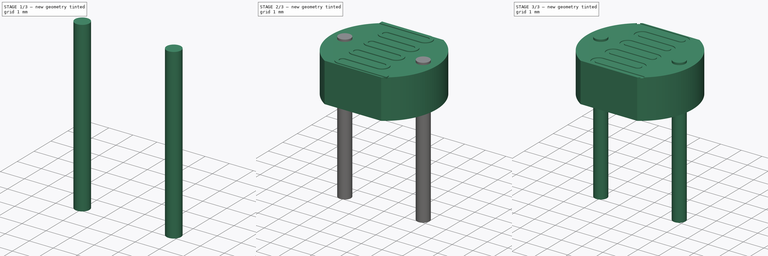
[diagram: build sequence overview — one tinted view per stage of 3, left to right]
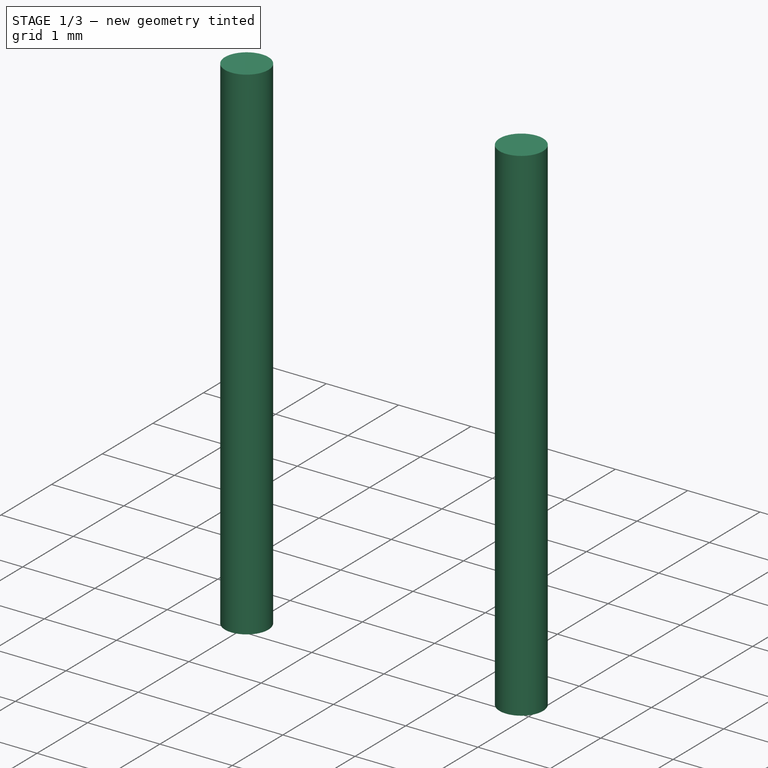
[diagram: stage 1 of 3 — iso view after this stage's code; geometry added in this stage tinted green]
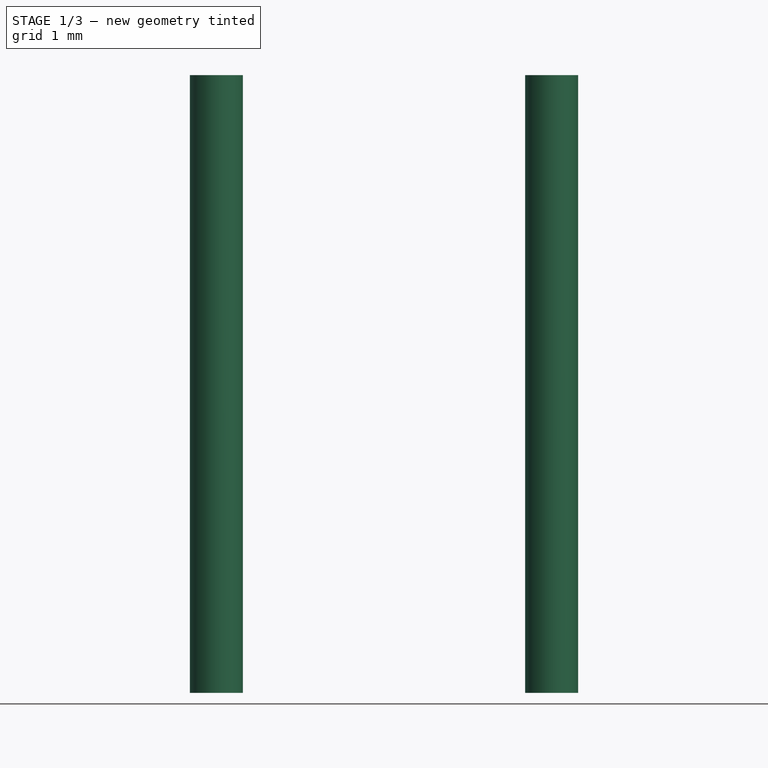
[diagram: stage 1 of 3 — front view after this stage's code; geometry added in this stage tinted green]
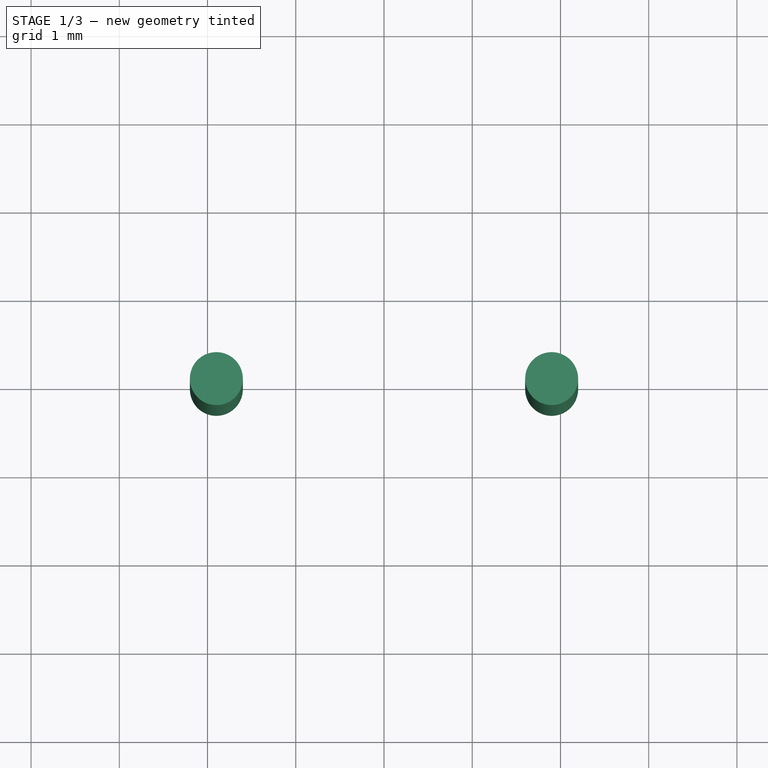
[diagram: stage 1 of 3 — top view after this stage's code; geometry added in this stage tinted green]
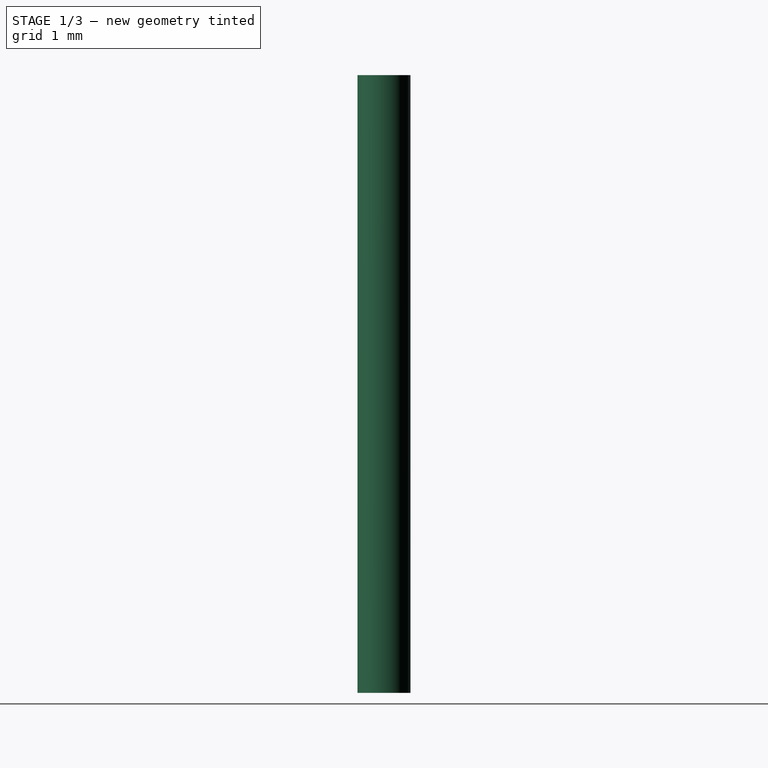
[diagram: stage 1 of 3 — right view after this stage's code; geometry added in this stage tinted green]
FCSTD DOCUMENT  (FreeCAD 0.14R3692 (Git))
Label: Photoresistor
License: CC-BY 3.0
LicenseURL: http://creativecommons.org/licenses/by/3.0/
objects: Sketcher::SketchObject×5, PartDesign::Pad×3, Part::Sweep×1, Part::Cut×1, Part::MultiFuse×1
note: 14 computed .brp shape members not serialized (recipe doc carries the construction recipe); baked Part::Feature solids carry a one-line shape summary decoded from their .brp

FEATURE [Sketcher::SketchObject] Sketch003
  Placement = pos=(0,0,-5) rot=(0,0,1;0rad)
  sketch-geometry (1):
    g0: Circle CenterX=1.9 CenterY=0 CenterZ=0 NormalX=0 NormalY=0 NormalZ=1 Radius=0.3
  constraints (3):
    c: PointOnObject(g0,g-1)
    c: Radius(g0) = 0.3
    c: DistanceX(g-1,g0) = 1.9
FEATURE [PartDesign::Pad] Pad001
  Length = 7
  Length2 = 100
  Placement = pos=(0,0,-5) rot=(0,0,1;0rad)
  Sketch = -> Sketch003
  Type = 0
FEATURE [Sketcher::SketchObject] Sketch004
  Placement = pos=(-3.8,0,-5) rot=(0,0,1;0rad)
  sketch-geometry (1):
    g0: Circle CenterX=1.9 CenterY=0 CenterZ=0 NormalX=0 NormalY=0 NormalZ=1 Radius=0.3
  constraints (3):
    c: PointOnObject(g0,g-1)
    c: Radius(g0) = 0.3
    c: DistanceX(g-1,g0) = 1.9
FEATURE [PartDesign::Pad] Pad002
  Length = 7
  Length2 = 100
  Placement = pos=(-3.8,0,-5) rot=(0,0,1;0rad)
  Sketch = -> Sketch004
  Type = 0
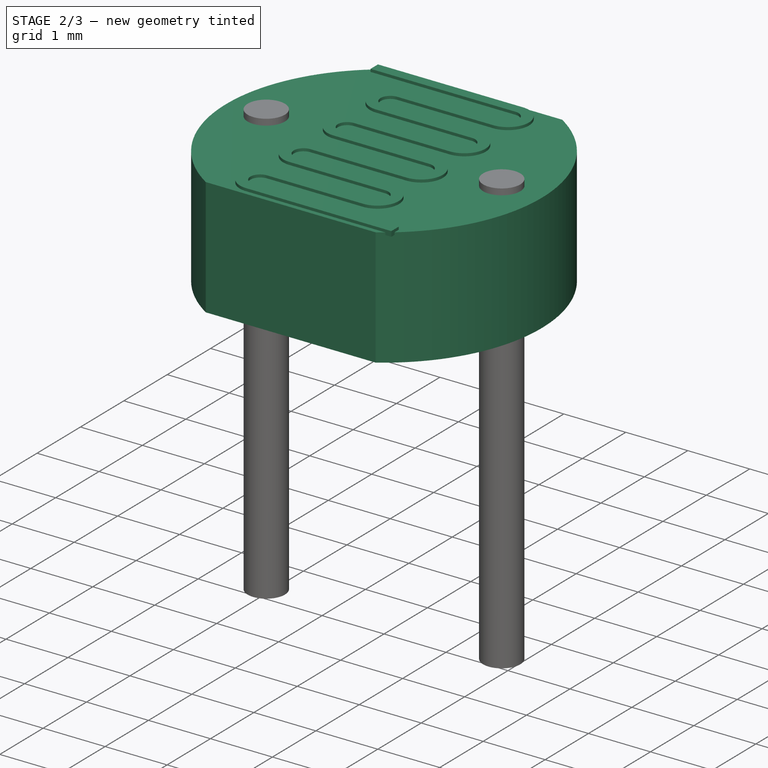
[diagram: stage 2 of 3 — iso view after this stage's code; geometry added in this stage tinted green]
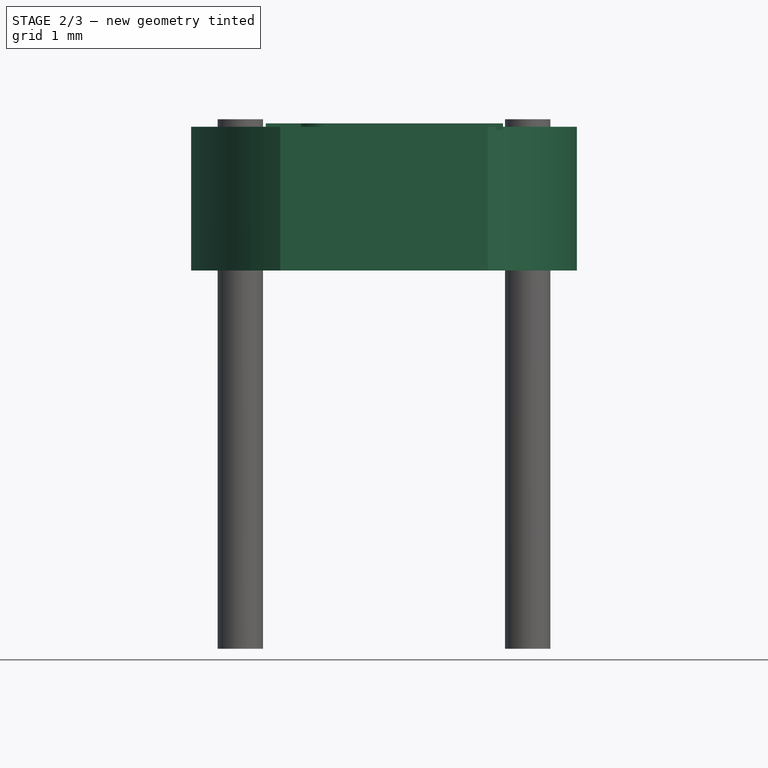
[diagram: stage 2 of 3 — front view after this stage's code; geometry added in this stage tinted green]
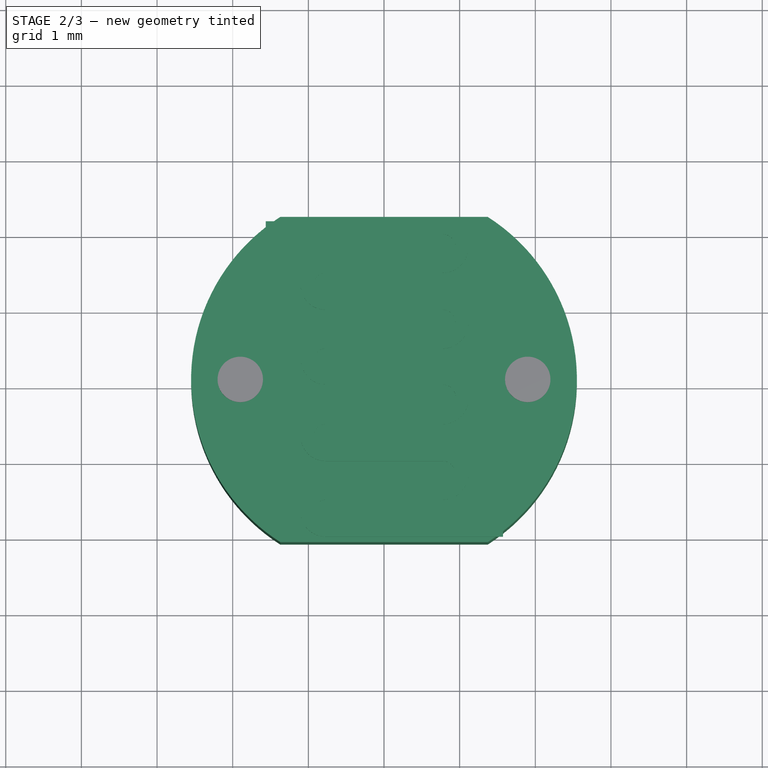
[diagram: stage 2 of 3 — top view after this stage's code; geometry added in this stage tinted green]
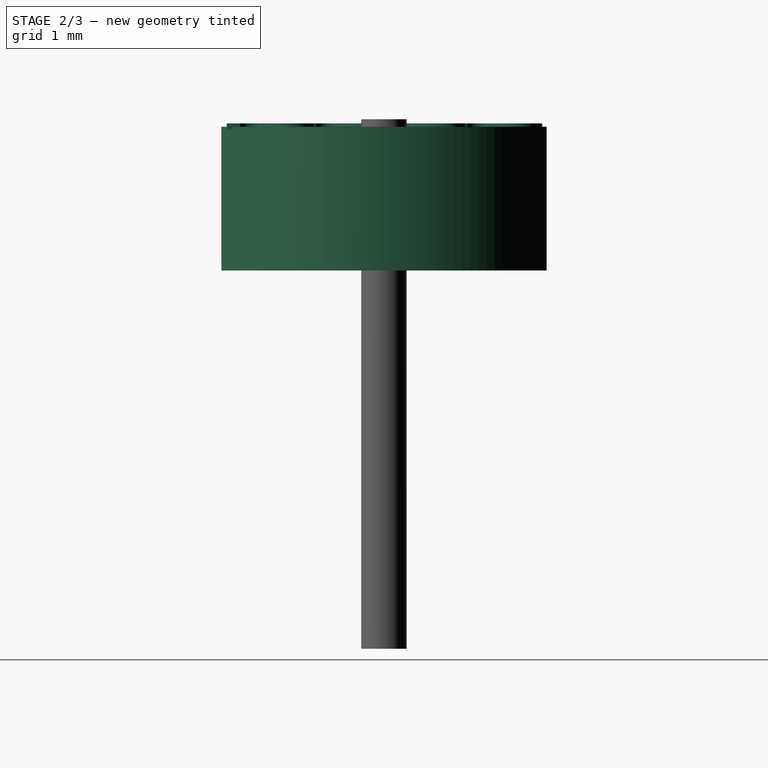
[diagram: stage 2 of 3 — right view after this stage's code; geometry added in this stage tinted green]
FEATURE [Sketcher::SketchObject] Sketch
  sketch-geometry (4):
    g0: ArcOfCircle CenterX=0 CenterY=0 CenterZ=0 NormalX=0 NormalY=0 NormalZ=1 Radius=2.55 StartAngle=2.1385 EndAngle=4.14468
    g1: LineSegment StartX=-1.37113 StartY=2.15 StartZ=0 EndX=1.37113 EndY=2.15 EndZ=0
    g2: LineSegment StartX=1.37113 StartY=-2.15 StartZ=0 EndX=-1.37113 EndY=-2.15 EndZ=0
    g3: ArcOfCircle CenterX=0 CenterY=0 CenterZ=0 NormalX=0 NormalY=0 NormalZ=1 Radius=2.55 StartAngle=5.28009 EndAngle=7.28628
  constraints (12):
    c: Coincident(g0,g-1)
    c: Radius(g0) = 2.55
    c: Horizontal(g1)
    c: Horizontal(g2)
    c: Coincident(g1,g0)
    c: Coincident(g1,g3)
    c: Equal(g0,g3)
    c: Coincident(g0,g3)
    c: Coincident(g2,g0)
    c: Coincident(g2,g3)
    c: DistanceY(g1,g2) = -4.3
    c: DistanceX(g-1,g1) = 1.37113
FEATURE [PartDesign::Pad] Pad
  Length = 1.9
  Length2 = 100
  Sketch = -> Sketch
  Type = 0
FEATURE [Sketcher::SketchObject] Sketch001  label="path"
  Placement = pos=(0,0,1.9) rot=(0,0,1;0rad)
  sketch-geometry (19):
    g0: LineSegment [constr] StartX=-0.772984 StartY=2.27909 StartZ=0 EndX=-0.772984 EndY=-2.33113 EndZ=0
    g1: LineSegment [constr] StartX=0.772984 StartY=2.27909 StartZ=0 EndX=0.772984 EndY=-2.33516 EndZ=0
    g2: LineSegment StartX=-1.56265 StartY=2 StartZ=0 EndX=0.772984 EndY=2 EndZ=0
    g3: LineSegment StartX=1.57377 StartY=-2 StartZ=0 EndX=-0.772984 EndY=-2 EndZ=0
    g4: LineSegment StartX=-0.772984 StartY=0.0120272 StartZ=0 EndX=0.772984 EndY=0.0120272 EndZ=0
    g5: LineSegment StartX=-0.772984 StartY=1.5 StartZ=0 EndX=0.772984 EndY=1.5 EndZ=0
    g6: LineSegment StartX=-0.772984 StartY=1 StartZ=0 EndX=0.772984 EndY=1 EndZ=0
    g7: LineSegment StartX=-0.772984 StartY=0.5 StartZ=0 EndX=0.772984 EndY=0.5 EndZ=0
    g8: LineSegment StartX=-0.772984 StartY=-0.5 StartZ=0 EndX=0.772984 EndY=-0.5 EndZ=0
    g9: LineSegment StartX=-0.772984 StartY=-1 StartZ=0 EndX=0.772984 EndY=-1 EndZ=0
    g10: LineSegment StartX=-0.772984 StartY=-1.5 StartZ=0 EndX=0.772984 EndY=-1.5 EndZ=0
    g11: ArcOfCircle CenterX=0.772984 CenterY=1.75 CenterZ=0 NormalX=0 NormalY=0 NormalZ=1 Radius=0.25 StartAngle=4.71239 EndAngle=7.85398
    g12: ArcOfCircle CenterX=-0.772984 CenterY=1.25 CenterZ=0 NormalX=0 NormalY=0 NormalZ=1 Radius=0.25 StartAngle=1.5708 EndAngle=4.71239
    g13: ArcOfCircle CenterX=0.772984 CenterY=0.75 CenterZ=0 NormalX=0 NormalY=0 NormalZ=1 Radius=0.25 StartAngle=4.71239 EndAngle=7.85398
    g14: ArcOfCircle CenterX=-0.772984 CenterY=0.256014 CenterZ=0 NormalX=0 NormalY=0 NormalZ=1 Radius=0.243986 StartAngle=1.5708 EndAngle=4.71239
    g15: ArcOfCircle CenterX=0.772984 CenterY=-0.243986 CenterZ=0 NormalX=0 NormalY=0 NormalZ=1 Radius=0.256014 StartAngle=4.71239 EndAngle=7.85398
    g16: ArcOfCircle CenterX=-0.772984 CenterY=-0.75 CenterZ=0 NormalX=0 NormalY=0 NormalZ=1 Radius=0.25 StartAngle=1.5708 EndAngle=4.71239
    g17: ArcOfCircle CenterX=0.772984 CenterY=-1.25 CenterZ=0 NormalX=0 NormalY=0 NormalZ=1 Radius=0.25 StartAngle=4.71239 EndAngle=7.85398
    g18: ArcOfCircle CenterX=-0.772984 CenterY=-1.75 CenterZ=0 NormalX=0 NormalY=0 NormalZ=1 Radius=0.25 StartAngle=1.5708 EndAngle=4.71239
  constraints (58):
    c: Vertical(g0)
    c: Symmetric(g0,g1,g-2)
    c: Horizontal(g2)
    c: PointOnObject(g3,g0)
    c: Horizontal(g3)
    c: DistanceY(g2,g3) = -4
    c: DistanceY(g-1,g2) = 2
    c: PointOnObject(g4,g0)
    c: PointOnObject(g4,g1)
    c: Horizontal(g4)
    c: PointOnObject(g5,g0)
    c: PointOnObject(g5,g1)
    c: Horizontal(g5)
    c: PointOnObject(g6,g0)
    c: PointOnObject(g6,g1)
    c: Horizontal(g6)
    c: PointOnObject(g7,g0)
    c: PointOnObject(g7,g1)
    c: Horizontal(g7)
    c: PointOnObject(g8,g0)
    c: Horizontal(g8)
    c: PointOnObject(g9,g0)
    c: PointOnObject(g9,g1)
    c: Horizontal(g9)
    c: PointOnObject(g10,g0)
    c: PointOnObject(g10,g1)
    c: Horizontal(g10)
    c: Symmetric(g5,g10,g-1)
    c: Symmetric(g6,g9,g-1)
    c: Symmetric(g7,g8,g-1)
    c: PointOnObject(g2,g1)
    c: DistanceY(g2,g5) = -0.5
    c: DistanceY(g5,g6) = -0.5
    c: DistanceY(g6,g7) = -0.5
    c: PointOnObject(g11,g1)
    c: Coincident(g11,g2)
    c: Coincident(g11,g5)
    c: PointOnObject(g12,g0)
    c: Coincident(g12,g5)
    c: Coincident(g12,g6)
    c: PointOnObject(g13,g1)
    c: Coincident(g13,g6)
    c: Coincident(g13,g7)
    c: PointOnObject(g14,g0)
    c: Coincident(g14,g7)
    c: Coincident(g14,g4)
    c: PointOnObject(g15,g1)
    c: Coincident(g15,g4)
    c: Coincident(g15,g8)
    c: PointOnObject(g16,g0)
    c: Coincident(g16,g8)
    c: Coincident(g16,g9)
    c: PointOnObject(g17,g1)
    c: Coincident(g17,g9)
    c: Coincident(g17,g10)
    c: PointOnObject(g18,g0)
    c: Coincident(g18,g10)
    c: Coincident(g18,g3)
FEATURE [Sketcher::SketchObject] Sketch002  label="seccion"
  Placement = pos=(1.57,0,0) rot=(0.57735,0.57735,0.57735;2.0944rad)
  sketch-geometry (4):
    g0: LineSegment StartX=-2.07819 StartY=1.94465 StartZ=0 EndX=-1.90819 EndY=1.94465 EndZ=0
    g1: LineSegment StartX=-1.90819 StartY=1.94465 StartZ=0 EndX=-1.90819 EndY=1.86159 EndZ=0
    g2: LineSegment StartX=-1.90819 StartY=1.86159 StartZ=0 EndX=-2.07819 EndY=1.86159 EndZ=0
    g3: LineSegment StartX=-2.07819 StartY=1.86159 StartZ=0 EndX=-2.07819 EndY=1.94465 EndZ=0
  constraints (9):
    c: Coincident(g0,g1)
    c: Coincident(g1,g2)
    c: Coincident(g2,g3)
    c: Coincident(g3,g0)
    c: Horizontal(g0)
    c: Horizontal(g2)
    c: Vertical(g1)
    c: Vertical(g3)
    c: DistanceX(g2) = -0.17
FEATURE [Part::Sweep] Sweep
  Frenet = false
  Sections = -> [Sketch002]
  Solid = true
  Spine = -> Sketch001 [Edge1,Edge2,Edge3,Edge4,Edge5,Edge6,Edge7,Edge8,Edge9,Edge10,Edge11,Edge12,Edge13,Edge14,Edge15,Edge16,Edge17]
  Transition = 1
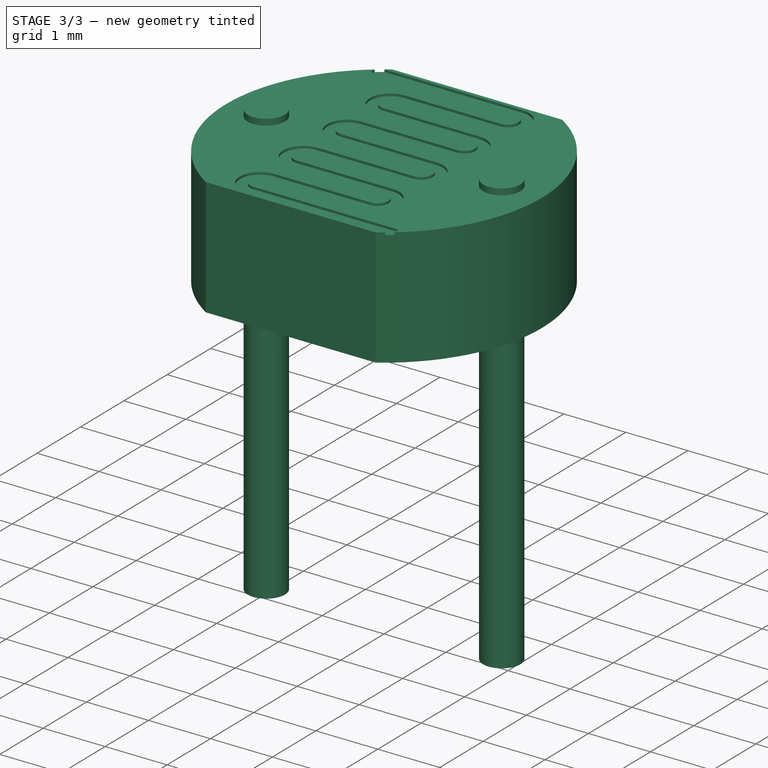
[diagram: stage 3 of 3 — iso view after this stage's code; geometry added in this stage tinted green]
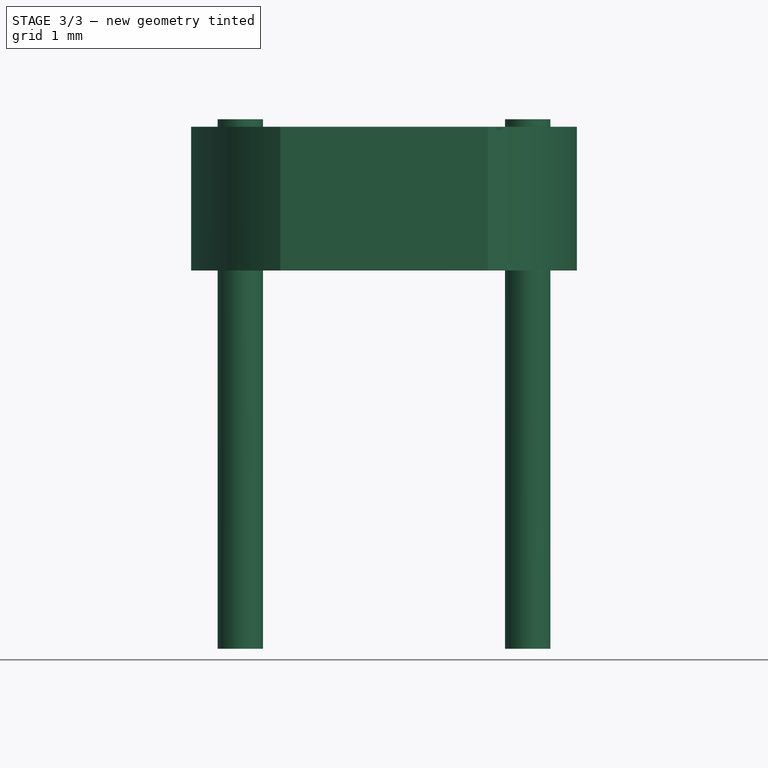
[diagram: stage 3 of 3 — front view after this stage's code; geometry added in this stage tinted green]
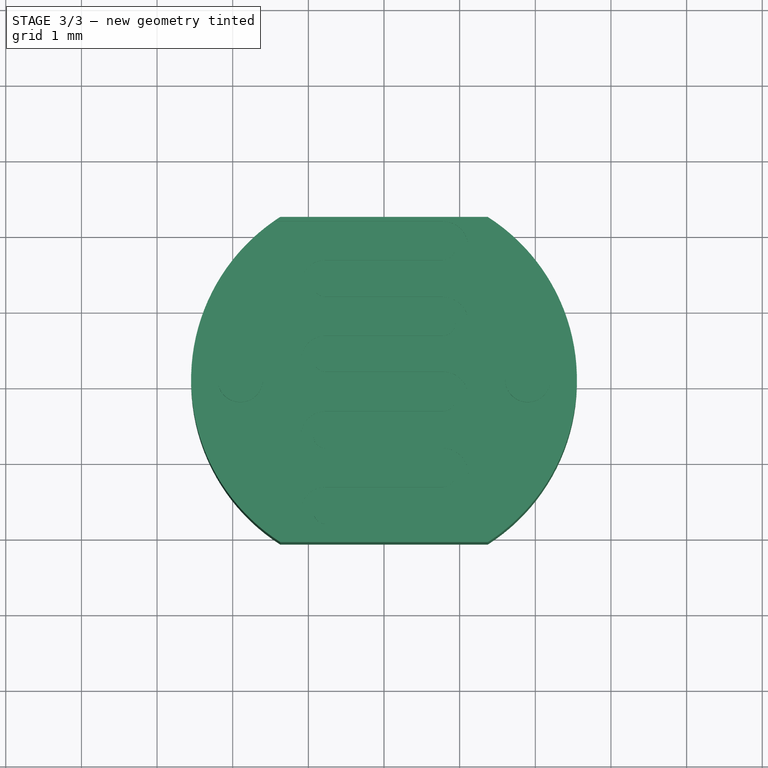
[diagram: stage 3 of 3 — top view after this stage's code; geometry added in this stage tinted green]
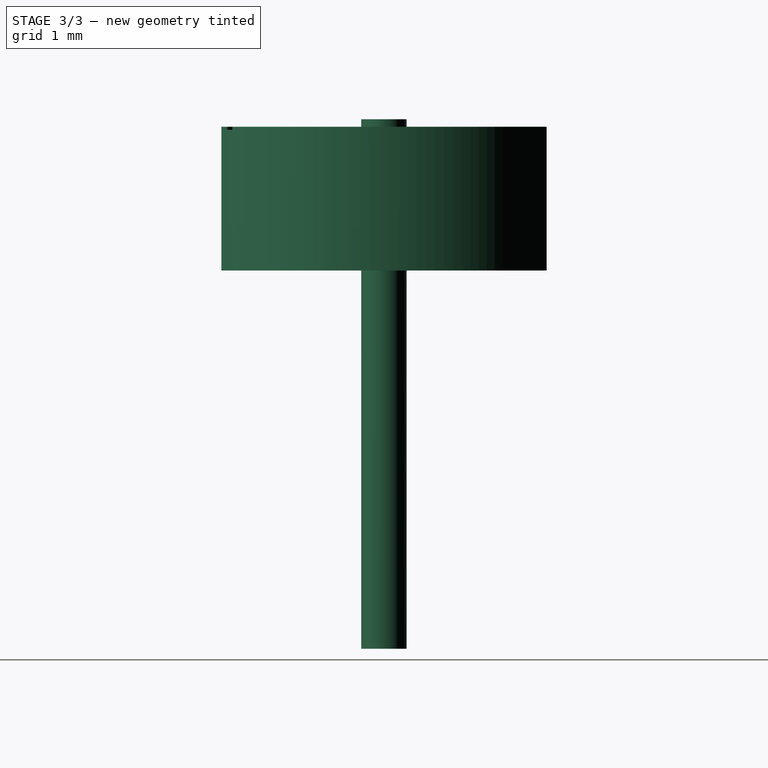
[diagram: stage 3 of 3 — right view after this stage's code; geometry added in this stage tinted green]
FEATURE [Part::Cut] Cut  label="Cabeza"
  Base = -> Pad
  Tool = -> Sweep
FEATURE [Part::MultiFuse] Fusion  label="LDR"
  Shapes = -> [Cut,Pad002,Pad001]
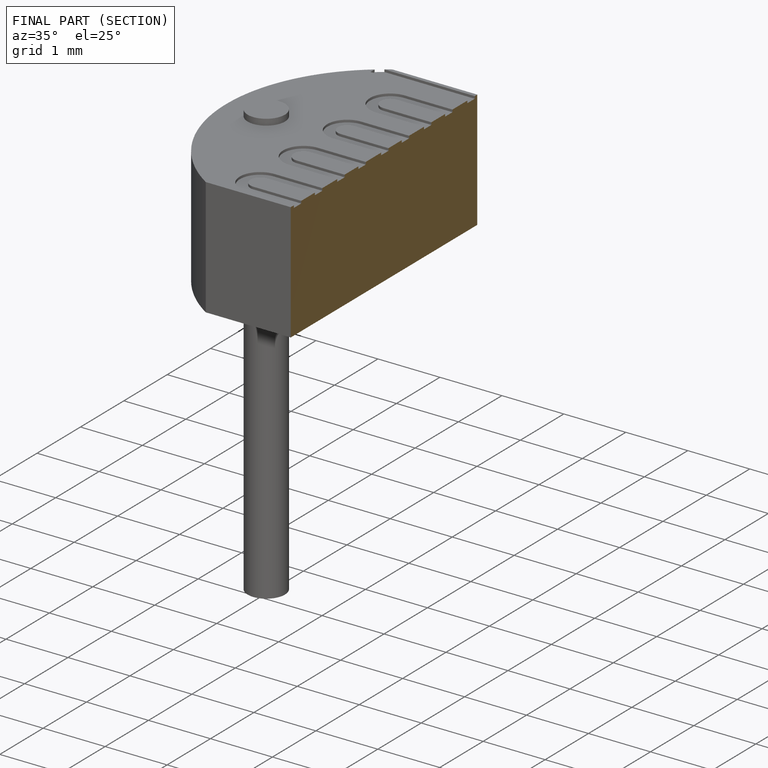
[diagram: finished part — half-section view (interior)]
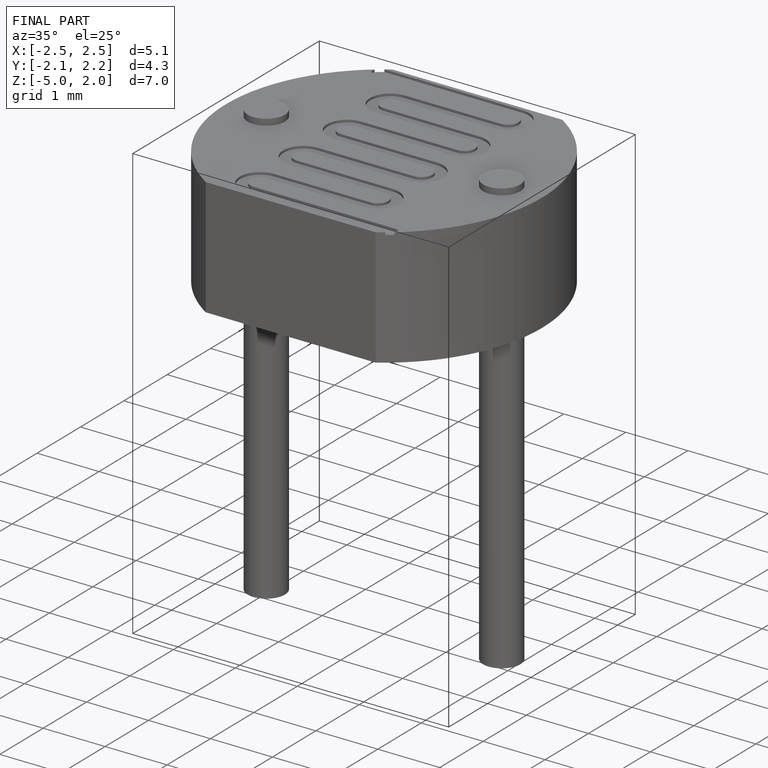
[diagram: finished part — iso view with bounding-box wireframe]
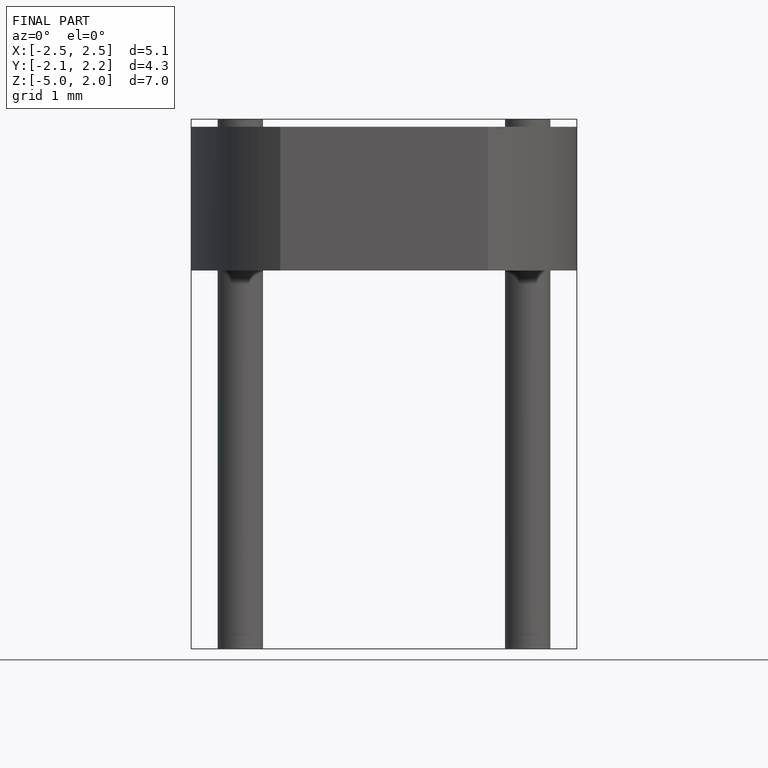
[diagram: finished part — front view with bounding-box wireframe]
